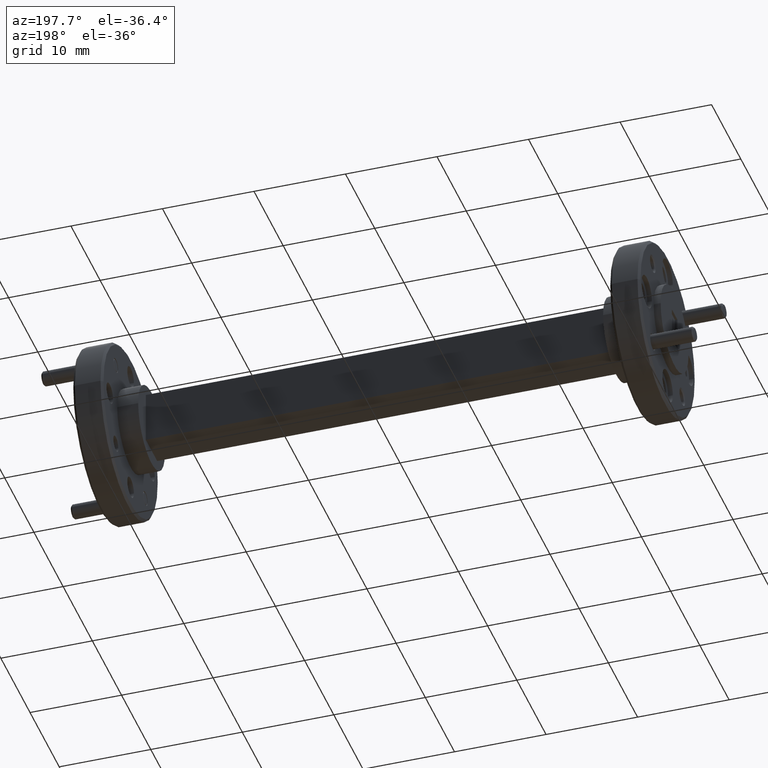
[diagram: clean part render]
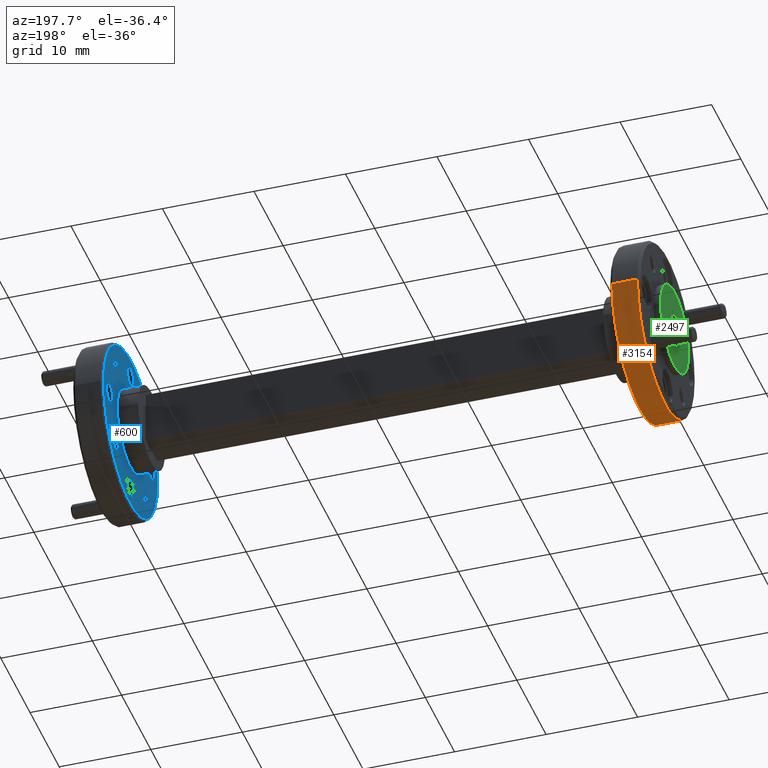
[diagram: same view with three faces highlighted in distinct colors, each labeled with its STEP entity id]
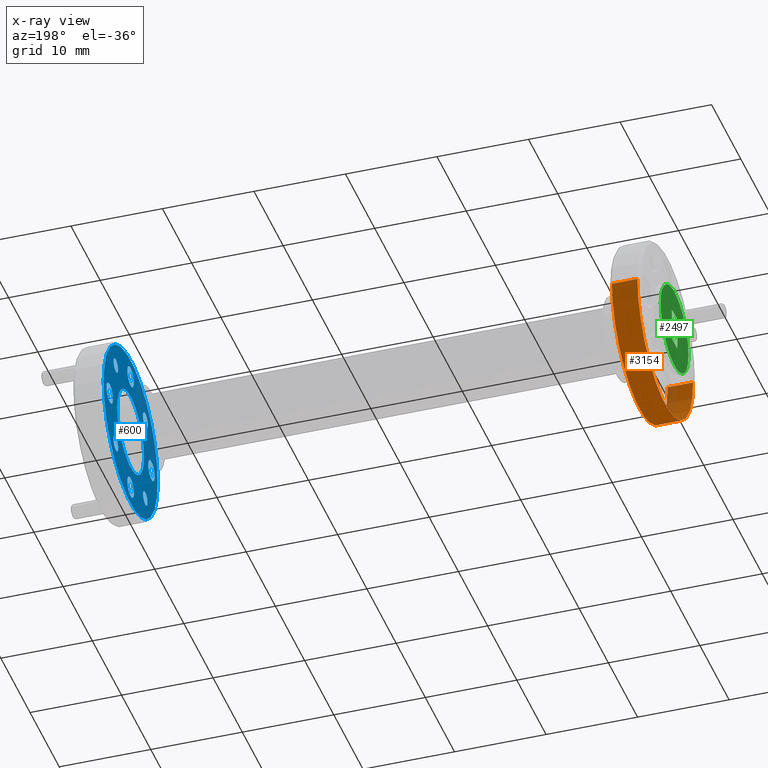
[diagram: x-ray of the same camera — body ghosted, the three highlighted faces saturated]
A machine part, auxiliary view with three faces highlighted in distinct colors.
The next image is the same camera in x-ray (body ghosted, the three faces saturated) — at least one of them is partly hidden behind the body in this view.
Their STEP definitions:

[orange] entity #3154 — the highlighted cylindrical surface (partial cylindrical patch) has radius 9.525 mm, axis along (1, 0, -0).
#6 = VERTEX_POINT ( 'NONE', #2014 ) ;
#23 = DIRECTION ( 'NONE',  ( 1.000000000000000000, 1.224646799147353947E-16, -0.000000000000000000 ) ) ;
#253 = DIRECTION ( 'NONE',  ( -1.000000000000000000, -1.224646799147350742E-16, 0.000000000000000000 ) ) ;
#289 = VECTOR ( 'NONE', #1967, 39.37007874015748143 ) ;
#343 = CARTESIAN_POINT ( 'NONE',  ( 0.1500000000000007994, 0.3749999999999996669, 0.000000000000000000 ) ) ;
#440 = EDGE_CURVE ( 'NONE', #2065, #6, #1592, .T. ) ;
#535 = ORIENTED_EDGE ( 'NONE', *, *, #2233, .F. ) ;
#581 = CARTESIAN_POINT ( 'NONE',  ( -1.862448192378166163E-13, -0.3749999999999996669, 4.592425496802570521E-17 ) ) ;
#709 = FACE_OUTER_BOUND ( 'NONE', #3726, .T. ) ;
#782 = ORIENTED_EDGE ( 'NONE', *, *, #1442, .T. ) ;
#826 = AXIS2_PLACEMENT_3D ( 'NONE', #2449, #4064, #3383 ) ;
#942 = EDGE_CURVE ( 'NONE', #6, #1489, #1130, .T. ) ;
#997 = CIRCLE ( 'NONE', #1413, 0.3749999999999996669 ) ;
#1040 = CARTESIAN_POINT ( 'NONE',  ( 0.1500000000000008826, -0.3749999999999996669, 4.592425496802570521E-17 ) ) ;
#1130 = LINE ( 'NONE', #2483, #2696 ) ;
#1413 = AXIS2_PLACEMENT_3D ( 'NONE', #3270, #253, #4261 ) ;
#1442 = EDGE_CURVE ( 'NONE', #1489, #3179, #997, .T. ) ;
#1489 = VERTEX_POINT ( 'NONE', #343 ) ;
#1592 = CIRCLE ( 'NONE', #3144, 0.3749999999999996669 ) ;
#1783 = CYLINDRICAL_SURFACE ( 'NONE', #826, 0.3749999999999996669 ) ;
#1888 = ORIENTED_EDGE ( 'NONE', *, *, #440, .T. ) ;
#1967 = DIRECTION ( 'NONE',  ( 1.000000000000000000, 1.224646799147353454E-16, -0.000000000000000000 ) ) ;
#2014 = CARTESIAN_POINT ( 'NONE',  ( 0.03999999999999988981, 0.3749999999999996669, 0.000000000000000000 ) ) ;
#2065 = VERTEX_POINT ( 'NONE', #3846 ) ;
#2233 = EDGE_CURVE ( 'NONE', #2065, #3179, #2976, .T. ) ;
#2449 = CARTESIAN_POINT ( 'NONE',  ( -1.862907434927846262E-13, -5.755786505608412837E-19, 0.000000000000000000 ) ) ;
#2483 = CARTESIAN_POINT ( 'NONE',  ( -1.863366677477526361E-13, 0.3749999999999996669, 0.000000000000000000 ) ) ;
#2696 = VECTOR ( 'NONE', #4116, 39.37007874015748143 ) ;
#2715 = CARTESIAN_POINT ( 'NONE',  ( 0.03999999999999993144, 4.323008546051379020E-18, 0.000000000000000000 ) ) ;
#2976 = LINE ( 'NONE', #581, #289 ) ;
#3103 = ORIENTED_EDGE ( 'NONE', *, *, #942, .T. ) ;
#3144 = AXIS2_PLACEMENT_3D ( 'NONE', #2715, #23, #3649 ) ;
#3154 = ADVANCED_FACE ( 'NONE', ( #709 ), #1783, .T. ) ;
#3179 = VERTEX_POINT ( 'NONE', #1040 ) ;
#3270 = CARTESIAN_POINT ( 'NONE',  ( 0.1500000000000008549, 1.779412333667238007E-17, 0.000000000000000000 ) ) ;
#3383 = DIRECTION ( 'NONE',  ( -1.224646799147020653E-16, 1.000000000000000000, 0.000000000000000000 ) ) ;
#3649 = DIRECTION ( 'NONE',  ( 1.138269997360110660E-16, -1.000000000000000000, 0.000000000000000000 ) ) ;
#3726 = EDGE_LOOP ( 'NONE', ( #535, #1888, #3103, #782 ) ) ;
#3846 = CARTESIAN_POINT ( 'NONE',  ( 0.03999999999999997308, -0.3749999999999996669, 4.592425496802570521E-17 ) ) ;
#4064 = DIRECTION ( 'NONE',  ( 1.000000000000000000, 1.224646799147353454E-16, -0.000000000000000000 ) ) ;
#4116 = DIRECTION ( 'NONE',  ( 1.000000000000000000, 1.224646799147353454E-16, -0.000000000000000000 ) ) ;
#4261 = DIRECTION ( 'NONE',  ( -1.365923996832132842E-16, 1.000000000000000000, 0.000000000000000000 ) ) ;

[blue] entity #600 — the highlighted planar face has unit normal (-1, -0, 0).
#1 = DIRECTION ( 'NONE',  ( 1.000000000000000000, 1.224646799147353454E-16, -0.000000000000000000 ) ) ;
#36 = DIRECTION ( 'NONE',  ( 1.000000000000000000, 1.224646799147353454E-16, -0.000000000000000000 ) ) ;
#41 = DIRECTION ( 'NONE',  ( 1.000000000000000000, 1.224646799147353454E-16, -0.000000000000000000 ) ) ;
#44 = DIRECTION ( 'NONE',  ( 0.000000000000000000, -1.000000000000000000, 0.000000000000000000 ) ) ;
#47 = DIRECTION ( 'NONE',  ( 0.000000000000000000, -1.000000000000000000, 0.000000000000000000 ) ) ;
#109 = CARTESIAN_POINT ( 'NONE',  ( 2.340000000000000302, -0.1988737822087162099, 0.1988737822087165430 ) ) ;
#113 = CARTESIAN_POINT ( 'NONE',  ( 2.340000000000000302, 0.1988737822087169871, -0.1988737822087165430 ) ) ;
#122 = VERTEX_POINT ( 'NONE', #4111 ) ;
#129 = EDGE_CURVE ( 'NONE', #1968, #122, #234, .T. ) ;
#133 = ORIENTED_EDGE ( 'NONE', *, *, #916, .T. ) ;
#155 = DIRECTION ( 'NONE',  ( -1.000000000000000000, -1.224646799147353454E-16, 0.000000000000000000 ) ) ;
#163 = AXIS2_PLACEMENT_3D ( 'NONE', #2432, #36, #2404 ) ;
#193 = EDGE_CURVE ( 'NONE', #2400, #3696, #2699, .T. ) ;
#197 = ORIENTED_EDGE ( 'NONE', *, *, #3817, .T. ) ;
#199 = DIRECTION ( 'NONE',  ( 0.000000000000000000, -1.000000000000000000, 0.000000000000000000 ) ) ;
#209 = ORIENTED_EDGE ( 'NONE', *, *, #945, .T. ) ;
#234 = CIRCLE ( 'NONE', #163, 0.03074999999999997180 ) ;
#267 = AXIS2_PLACEMENT_3D ( 'NONE', #2498, #3836, #2161 ) ;
#305 = AXIS2_PLACEMENT_3D ( 'NONE', #1633, #1, #2266 ) ;
#372 = EDGE_LOOP ( 'NONE', ( #3017, #4316 ) ) ;
#410 = FACE_BOUND ( 'NONE', #835, .T. ) ;
#426 = DIRECTION ( 'NONE',  ( 0.000000000000000000, -1.000000000000000000, 0.000000000000000000 ) ) ;
#447 = VERTEX_POINT ( 'NONE', #2379 ) ;
#531 = AXIS2_PLACEMENT_3D ( 'NONE', #3507, #4183, #199 ) ;
#566 = DIRECTION ( 'NONE',  ( 1.000000000000000000, 1.224646799147353454E-16, -0.000000000000000000 ) ) ;
#574 = EDGE_CURVE ( 'NONE', #4018, #3081, #1096, .T. ) ;
#600 = ADVANCED_FACE ( 'NONE', ( #1457, #1823, #3768, #4077, #3511, #759, #410, #3488, #2801, #3180 ), #4123, .T. ) ;
#606 = AXIS2_PLACEMENT_3D ( 'NONE', #887, #2222, #44 ) ;
#626 = VERTEX_POINT ( 'NONE', #2174 ) ;
#678 = DIRECTION ( 'NONE',  ( 1.000000000000000000, 1.224646799147353454E-16, -0.000000000000000000 ) ) ;
#692 = EDGE_CURVE ( 'NONE', #122, #1968, #3703, .T. ) ;
#703 = EDGE_LOOP ( 'NONE', ( #2237, #3257 ) ) ;
#759 = FACE_BOUND ( 'NONE', #2341, .T. ) ;
#798 = CIRCLE ( 'NONE', #3262, 0.03074999999999997180 ) ;
#809 = EDGE_LOOP ( 'NONE', ( #209, #919 ) ) ;
#835 = EDGE_LOOP ( 'NONE', ( #2129, #4227 ) ) ;
#861 = AXIS2_PLACEMENT_3D ( 'NONE', #1999, #3977, #1312 ) ;
#877 = CIRCLE ( 'NONE', #4156, 0.04449999999999999789 ) ;
#885 = CARTESIAN_POINT ( 'NONE',  ( 2.340000000000000302, 0.1988737822087168483, 0.1988737822087165430 ) ) ;
#887 = CARTESIAN_POINT ( 'NONE',  ( 2.340000000000000302, 0.1988737822087169871, -0.1988737822087165430 ) ) ;
#909 = DIRECTION ( 'NONE',  ( 0.000000000000000000, -1.000000000000000000, 0.000000000000000000 ) ) ;
#910 = DIRECTION ( 'NONE',  ( 0.000000000000000000, -1.000000000000000000, 0.000000000000000000 ) ) ;
#911 = CARTESIAN_POINT ( 'NONE',  ( 2.340000000000000302, 0.3257500000000002616, 0.000000000000000000 ) ) ;
#916 = EDGE_CURVE ( 'NONE', #447, #1659, #2550, .T. ) ;
#919 = ORIENTED_EDGE ( 'NONE', *, *, #1673, .T. ) ;
#935 = CARTESIAN_POINT ( 'NONE',  ( 2.340000000000000302, 2.859917723499426963E-16, 0.000000000000000000 ) ) ;
#945 = EDGE_CURVE ( 'NONE', #2808, #626, #798, .T. ) ;
#1005 = AXIS2_PLACEMENT_3D ( 'NONE', #1569, #2245, #1125 ) ;
#1041 = CIRCLE ( 'NONE', #1680, 0.3649999999999994360 ) ;
#1094 = DIRECTION ( 'NONE',  ( 1.000000000000000000, 1.224646799147353454E-16, -0.000000000000000000 ) ) ;
#1096 = CIRCLE ( 'NONE', #1800, 0.03350000000000002975 ) ;
#1116 = CARTESIAN_POINT ( 'NONE',  ( 2.340000000000000302, 0.1799999999999997435, 0.000000000000000000 ) ) ;
#1125 = DIRECTION ( 'NONE',  ( 0.000000000000000000, -1.000000000000000000, 0.000000000000000000 ) ) ;
#1128 = CIRCLE ( 'NONE', #4004, 0.1799999999999994937 ) ;
#1159 = CARTESIAN_POINT ( 'NONE',  ( 2.340000000000000302, -0.1681237822087161549, -0.1988737822087165430 ) ) ;
#1170 = EDGE_CURVE ( 'NONE', #1238, #1898, #1551, .T. ) ;
#1193 = CIRCLE ( 'NONE', #861, 0.04450000000000008116 ) ;
#1209 = CARTESIAN_POINT ( 'NONE',  ( 2.340000000000000302, 2.865673510004807555E-16, -0.2812500000000000000 ) ) ;
#1231 = AXIS2_PLACEMENT_3D ( 'NONE', #1116, #155, #1805 ) ;
#1238 = VERTEX_POINT ( 'NONE', #3035 ) ;
#1269 = CIRCLE ( 'NONE', #1975, 0.03349999999999999506 ) ;
#1298 = VERTEX_POINT ( 'NONE', #3079 ) ;
#1312 = DIRECTION ( 'NONE',  ( 0.000000000000000000, -1.000000000000000000, 0.000000000000000000 ) ) ;
#1387 = CARTESIAN_POINT ( 'NONE',  ( 2.340000000000000302, -0.04449999999999978972, 0.2812500000000000000 ) ) ;
#1455 = CARTESIAN_POINT ( 'NONE',  ( 2.340000000000000302, -0.1988737822087161544, -0.1988737822087165430 ) ) ;
#1457 = FACE_OUTER_BOUND ( 'NONE', #1848, .T. ) ;
#1472 = EDGE_CURVE ( 'NONE', #4202, #3585, #1128, .T. ) ;
#1499 = EDGE_CURVE ( 'NONE', #3443, #3580, #1193, .T. ) ;
#1503 = EDGE_CURVE ( 'NONE', #1854, #3038, #3673, .T. ) ;
#1505 = CIRCLE ( 'NONE', #606, 0.03350000000000002975 ) ;
#1506 = DIRECTION ( 'NONE',  ( -1.000000000000000000, -1.224646799147353454E-16, 0.000000000000000000 ) ) ;
#1539 = CARTESIAN_POINT ( 'NONE',  ( 2.340000000000000302, 2.859917723499426963E-16, 0.000000000000000000 ) ) ;
#1551 = CIRCLE ( 'NONE', #4130, 0.3649999999999994360 ) ;
#1569 = CARTESIAN_POINT ( 'NONE',  ( 2.340000000000000302, -0.1988737822087162099, 0.1988737822087165430 ) ) ;
#1599 = AXIS2_PLACEMENT_3D ( 'NONE', #885, #3293, #909 ) ;
#1632 = AXIS2_PLACEMENT_3D ( 'NONE', #1455, #2712, #47 ) ;
#1633 = CARTESIAN_POINT ( 'NONE',  ( 2.340000000000000302, 0.2812500000000002776, 0.000000000000000000 ) ) ;
#1659 = VERTEX_POINT ( 'NONE', #3396 ) ;
#1667 = EDGE_CURVE ( 'NONE', #3696, #2400, #1269, .T. ) ;
#1673 = EDGE_CURVE ( 'NONE', #626, #2808, #3877, .T. ) ;
#1680 = AXIS2_PLACEMENT_3D ( 'NONE', #1539, #3133, #2549 ) ;
#1705 = EDGE_LOOP ( 'NONE', ( #2154, #2908 ) ) ;
#1715 = CARTESIAN_POINT ( 'NONE',  ( 2.340000000000000302, -0.1988737822087161544, -0.1988737822087165430 ) ) ;
#1724 = CARTESIAN_POINT ( 'NONE',  ( 2.340000000000000302, 2.859917723499426963E-16, 0.000000000000000000 ) ) ;
#1727 = EDGE_LOOP ( 'NONE', ( #4000, #1859 ) ) ;
#1741 = DIRECTION ( 'NONE',  ( 1.000000000000000000, 1.224646799147353454E-16, -0.000000000000000000 ) ) ;
#1752 = ORIENTED_EDGE ( 'NONE', *, *, #1499, .T. ) ;
#1755 = DIRECTION ( 'NONE',  ( 0.000000000000000000, -1.000000000000000000, 0.000000000000000000 ) ) ;
#1761 = DIRECTION ( 'NONE',  ( 1.000000000000000000, 1.224646799147353454E-16, -0.000000000000000000 ) ) ;
#1768 = DIRECTION ( 'NONE',  ( 1.000000000000000000, 1.224646799147353454E-16, -0.000000000000000000 ) ) ;
#1800 = AXIS2_PLACEMENT_3D ( 'NONE', #113, #3828, #426 ) ;
#1805 = DIRECTION ( 'NONE',  ( 1.224646799147353454E-16, -1.000000000000000000, 0.000000000000000000 ) ) ;
#1823 = FACE_BOUND ( 'NONE', #1727, .T. ) ;
#1848 = EDGE_LOOP ( 'NONE', ( #2634, #4127 ) ) ;
#1854 = VERTEX_POINT ( 'NONE', #911 ) ;
#1856 = AXIS2_PLACEMENT_3D ( 'NONE', #1209, #2617, #2925 ) ;
#1859 = ORIENTED_EDGE ( 'NONE', *, *, #193, .T. ) ;
#1898 = VERTEX_POINT ( 'NONE', #3991 ) ;
#1968 = VERTEX_POINT ( 'NONE', #4057 ) ;
#1975 = AXIS2_PLACEMENT_3D ( 'NONE', #109, #1741, #2773 ) ;
#1999 = CARTESIAN_POINT ( 'NONE',  ( 2.340000000000000302, 2.865673510004807555E-16, 0.2812500000000000000 ) ) ;
#2086 = EDGE_CURVE ( 'NONE', #3580, #3443, #4228, .T. ) ;
#2109 = CARTESIAN_POINT ( 'NONE',  ( 2.340000000000000302, 0.04450000000000037259, 0.2812500000000000000 ) ) ;
#2119 = EDGE_CURVE ( 'NONE', #1898, #1238, #1041, .T. ) ;
#2129 = ORIENTED_EDGE ( 'NONE', *, *, #1503, .T. ) ;
#2154 = ORIENTED_EDGE ( 'NONE', *, *, #692, .T. ) ;
#2161 = DIRECTION ( 'NONE',  ( 0.000000000000000000, -1.000000000000000000, 0.000000000000000000 ) ) ;
#2162 = EDGE_LOOP ( 'NONE', ( #2701, #1752 ) ) ;
#2174 = CARTESIAN_POINT ( 'NONE',  ( 2.340000000000000302, -0.2296237822087161262, -0.1988737822087165430 ) ) ;
#2222 = DIRECTION ( 'NONE',  ( 1.000000000000000000, 1.224646799147353454E-16, -0.000000000000000000 ) ) ;
#2237 = ORIENTED_EDGE ( 'NONE', *, *, #2437, .T. ) ;
#2245 = DIRECTION ( 'NONE',  ( 1.000000000000000000, 1.224646799147353454E-16, -0.000000000000000000 ) ) ;
#2266 = DIRECTION ( 'NONE',  ( 0.000000000000000000, -1.000000000000000000, 0.000000000000000000 ) ) ;
#2305 = AXIS2_PLACEMENT_3D ( 'NONE', #3520, #1768, #3127 ) ;
#2341 = EDGE_LOOP ( 'NONE', ( #133, #3652 ) ) ;
#2379 = CARTESIAN_POINT ( 'NONE',  ( 2.340000000000000302, 0.04450000000000037259, -0.2812500000000000000 ) ) ;
#2400 = VERTEX_POINT ( 'NONE', #2679 ) ;
#2404 = DIRECTION ( 'NONE',  ( 0.000000000000000000, -1.000000000000000000, 0.000000000000000000 ) ) ;
#2432 = CARTESIAN_POINT ( 'NONE',  ( 2.340000000000000302, 0.1988737822087168483, 0.1988737822087165430 ) ) ;
#2437 = EDGE_CURVE ( 'NONE', #2614, #1298, #3982, .T. ) ;
#2498 = CARTESIAN_POINT ( 'NONE',  ( 2.340000000000000302, -0.2812499999999997224, 0.000000000000000000 ) ) ;
#2549 = DIRECTION ( 'NONE',  ( 0.000000000000000000, -1.000000000000000000, 0.000000000000000000 ) ) ;
#2550 = CIRCLE ( 'NONE', #4219, 0.04450000000000008116 ) ;
#2585 = CARTESIAN_POINT ( 'NONE',  ( 2.340000000000000302, 0.2812500000000002776, 0.000000000000000000 ) ) ;
#2614 = VERTEX_POINT ( 'NONE', #3567 ) ;
#2617 = DIRECTION ( 'NONE',  ( 1.000000000000000000, 1.224646799147353454E-16, -0.000000000000000000 ) ) ;
#2634 = ORIENTED_EDGE ( 'NONE', *, *, #1170, .T. ) ;
#2644 = CIRCLE ( 'NONE', #2849, 0.1799999999999994937 ) ;
#2679 = CARTESIAN_POINT ( 'NONE',  ( 2.340000000000000302, -0.2323737822087162119, 0.1988737822087165430 ) ) ;
#2699 = CIRCLE ( 'NONE', #1005, 0.03349999999999999506 ) ;
#2701 = ORIENTED_EDGE ( 'NONE', *, *, #2086, .T. ) ;
#2712 = DIRECTION ( 'NONE',  ( 1.000000000000000000, 1.224646799147353454E-16, -0.000000000000000000 ) ) ;
#2773 = DIRECTION ( 'NONE',  ( 0.000000000000000000, -1.000000000000000000, 0.000000000000000000 ) ) ;
#2783 = CARTESIAN_POINT ( 'NONE',  ( 2.340000000000000302, 0.1653737822087169573, -0.1988737822087165430 ) ) ;
#2801 = FACE_BOUND ( 'NONE', #1705, .T. ) ;
#2808 = VERTEX_POINT ( 'NONE', #1159 ) ;
#2849 = AXIS2_PLACEMENT_3D ( 'NONE', #1724, #1761, #3115 ) ;
#2860 = ORIENTED_EDGE ( 'NONE', *, *, #574, .T. ) ;
#2883 = EDGE_LOOP ( 'NONE', ( #2860, #197 ) ) ;
#2908 = ORIENTED_EDGE ( 'NONE', *, *, #129, .T. ) ;
#2925 = DIRECTION ( 'NONE',  ( 0.000000000000000000, -1.000000000000000000, 0.000000000000000000 ) ) ;
#2940 = CARTESIAN_POINT ( 'NONE',  ( 2.340000000000000302, -0.1653737822087162079, 0.1988737822087165430 ) ) ;
#3017 = ORIENTED_EDGE ( 'NONE', *, *, #3524, .T. ) ;
#3035 = CARTESIAN_POINT ( 'NONE',  ( 2.340000000000000302, 0.3649999999999997136, 0.000000000000000000 ) ) ;
#3038 = VERTEX_POINT ( 'NONE', #3322 ) ;
#3079 = CARTESIAN_POINT ( 'NONE',  ( 2.340000000000000302, -0.3257499999999997065, 5.449678256205722801E-18 ) ) ;
#3081 = VERTEX_POINT ( 'NONE', #2783 ) ;
#3090 = CARTESIAN_POINT ( 'NONE',  ( 2.340000000000000302, 2.865673510004807555E-16, -0.2812500000000000000 ) ) ;
#3115 = DIRECTION ( 'NONE',  ( 0.000000000000000000, 1.000000000000000000, 0.000000000000000000 ) ) ;
#3127 = DIRECTION ( 'NONE',  ( 0.000000000000000000, -1.000000000000000000, 0.000000000000000000 ) ) ;
#3133 = DIRECTION ( 'NONE',  ( -1.000000000000000000, -1.224646799147353454E-16, 0.000000000000000000 ) ) ;
#3180 = FACE_BOUND ( 'NONE', #809, .T. ) ;
#3257 = ORIENTED_EDGE ( 'NONE', *, *, #3319, .T. ) ;
#3262 = AXIS2_PLACEMENT_3D ( 'NONE', #1715, #1094, #1755 ) ;
#3293 = DIRECTION ( 'NONE',  ( 1.000000000000000000, 1.224646799147353454E-16, -0.000000000000000000 ) ) ;
#3319 = EDGE_CURVE ( 'NONE', #1298, #2614, #3429, .T. ) ;
#3322 = CARTESIAN_POINT ( 'NONE',  ( 2.340000000000000302, 0.2367500000000002935, 5.449678256205722801E-18 ) ) ;
#3396 = CARTESIAN_POINT ( 'NONE',  ( 2.340000000000000302, -0.04449999999999978972, -0.2812500000000000000 ) ) ;
#3429 = CIRCLE ( 'NONE', #267, 0.04449999999999999789 ) ;
#3443 = VERTEX_POINT ( 'NONE', #1387 ) ;
#3488 = FACE_BOUND ( 'NONE', #372, .T. ) ;
#3489 = CARTESIAN_POINT ( 'NONE',  ( 2.340000000000000302, 0.1799999999999997435, 0.000000000000000000 ) ) ;
#3507 = CARTESIAN_POINT ( 'NONE',  ( 2.340000000000000302, 2.865673510004807555E-16, 0.2812500000000000000 ) ) ;
#3511 = FACE_BOUND ( 'NONE', #703, .T. ) ;
#3520 = CARTESIAN_POINT ( 'NONE',  ( 2.340000000000000302, -0.2812499999999997224, 0.000000000000000000 ) ) ;
#3524 = EDGE_CURVE ( 'NONE', #3585, #4202, #2644, .T. ) ;
#3551 = CIRCLE ( 'NONE', #1856, 0.04450000000000008116 ) ;
#3565 = CARTESIAN_POINT ( 'NONE',  ( 2.340000000000000302, -0.1799999999999992162, 2.204364238465230584E-17 ) ) ;
#3567 = CARTESIAN_POINT ( 'NONE',  ( 2.340000000000000302, -0.2367499999999997384, 0.000000000000000000 ) ) ;
#3580 = VERTEX_POINT ( 'NONE', #2109 ) ;
#3585 = VERTEX_POINT ( 'NONE', #3489 ) ;
#3652 = ORIENTED_EDGE ( 'NONE', *, *, #4330, .T. ) ;
#3673 = CIRCLE ( 'NONE', #305, 0.04449999999999999789 ) ;
#3696 = VERTEX_POINT ( 'NONE', #2940 ) ;
#3703 = CIRCLE ( 'NONE', #1599, 0.03074999999999997180 ) ;
#3711 = EDGE_CURVE ( 'NONE', #3038, #1854, #877, .T. ) ;
#3768 = FACE_BOUND ( 'NONE', #2883, .T. ) ;
#3799 = DIRECTION ( 'NONE',  ( 0.000000000000000000, -1.000000000000000000, 0.000000000000000000 ) ) ;
#3817 = EDGE_CURVE ( 'NONE', #3081, #4018, #1505, .T. ) ;
#3828 = DIRECTION ( 'NONE',  ( 1.000000000000000000, 1.224646799147353454E-16, -0.000000000000000000 ) ) ;
#3836 = DIRECTION ( 'NONE',  ( 1.000000000000000000, 1.224646799147353454E-16, -0.000000000000000000 ) ) ;
#3877 = CIRCLE ( 'NONE', #1632, 0.03074999999999997180 ) ;
#3906 = CARTESIAN_POINT ( 'NONE',  ( 2.340000000000000302, 0.2323737822087170168, -0.1988737822087165430 ) ) ;
#3977 = DIRECTION ( 'NONE',  ( 1.000000000000000000, 1.224646799147353454E-16, -0.000000000000000000 ) ) ;
#3982 = CIRCLE ( 'NONE', #2305, 0.04449999999999999789 ) ;
#3991 = CARTESIAN_POINT ( 'NONE',  ( 2.340000000000000302, -0.3649999999999991585, 4.531193156845200531E-17 ) ) ;
#3994 = DIRECTION ( 'NONE',  ( 0.000000000000000000, 1.000000000000000000, 0.000000000000000000 ) ) ;
#4000 = ORIENTED_EDGE ( 'NONE', *, *, #1667, .T. ) ;
#4004 = AXIS2_PLACEMENT_3D ( 'NONE', #4281, #678, #3994 ) ;
#4018 = VERTEX_POINT ( 'NONE', #3906 ) ;
#4057 = CARTESIAN_POINT ( 'NONE',  ( 2.340000000000000302, 0.1681237822087168765, 0.1988737822087165430 ) ) ;
#4077 = FACE_BOUND ( 'NONE', #2162, .T. ) ;
#4111 = CARTESIAN_POINT ( 'NONE',  ( 2.340000000000000302, 0.2296237822087168201, 0.1988737822087165430 ) ) ;
#4123 = PLANE ( 'NONE',  #1231 ) ;
#4127 = ORIENTED_EDGE ( 'NONE', *, *, #2119, .T. ) ;
#4130 = AXIS2_PLACEMENT_3D ( 'NONE', #935, #1506, #4194 ) ;
#4156 = AXIS2_PLACEMENT_3D ( 'NONE', #2585, #566, #910 ) ;
#4183 = DIRECTION ( 'NONE',  ( 1.000000000000000000, 1.224646799147353454E-16, -0.000000000000000000 ) ) ;
#4194 = DIRECTION ( 'NONE',  ( 0.000000000000000000, -1.000000000000000000, 0.000000000000000000 ) ) ;
#4202 = VERTEX_POINT ( 'NONE', #3565 ) ;
#4219 = AXIS2_PLACEMENT_3D ( 'NONE', #3090, #41, #3799 ) ;
#4227 = ORIENTED_EDGE ( 'NONE', *, *, #3711, .T. ) ;
#4228 = CIRCLE ( 'NONE', #531, 0.04450000000000008116 ) ;
#4281 = CARTESIAN_POINT ( 'NONE',  ( 2.340000000000000302, 2.859917723499426963E-16, 0.000000000000000000 ) ) ;
#4316 = ORIENTED_EDGE ( 'NONE', *, *, #1472, .T. ) ;
#4330 = EDGE_CURVE ( 'NONE', #1659, #447, #3551, .T. ) ;

[green] entity #2497 — the highlighted planar face has unit normal (-1, -0, 0).
#146 = CARTESIAN_POINT ( 'NONE',  ( 1.148106374200642476E-17, 1.406024796245490310E-33, 0.000000000000000000 ) ) ;
#192 = EDGE_CURVE ( 'NONE', #839, #3336, #452, .T. ) ;
#239 = AXIS2_PLACEMENT_3D ( 'NONE', #812, #1230, #2141 ) ;
#294 = CARTESIAN_POINT ( 'NONE',  ( 9.296024062278548045E-30, 0.1874999999999997780, 0.000000000000000000 ) ) ;
#394 = CARTESIAN_POINT ( 'NONE',  ( 1.601225689885162930E-17, -0.03699999999999998429, -0.07399999999999999634 ) ) ;
#428 = EDGE_CURVE ( 'NONE', #1577, #3481, #2693, .T. ) ;
#452 = CIRCLE ( 'NONE', #239, 0.1874999999999997780 ) ;
#474 = DIRECTION ( 'NONE',  ( 0.000000000000000000, 1.000000000000000000, 0.000000000000000000 ) ) ;
#488 = FACE_BOUND ( 'NONE', #569, .T. ) ;
#522 = EDGE_LOOP ( 'NONE', ( #4032, #1208 ) ) ;
#569 = EDGE_LOOP ( 'NONE', ( #1056, #1250, #845, #743 ) ) ;
#698 = DIRECTION ( 'NONE',  ( -0.000000000000000000, 1.153652024351462561E-16, -1.000000000000000000 ) ) ;
#743 = ORIENTED_EDGE ( 'NONE', *, *, #2066, .T. ) ;
#796 = CARTESIAN_POINT ( 'NONE',  ( 0.000000000000000000, -0.03699999999999998429, -0.07399999999999999634 ) ) ;
#812 = CARTESIAN_POINT ( 'NONE',  ( 2.296212748402214637E-17, -5.755786505380245028E-19, 0.000000000000000000 ) ) ;
#839 = VERTEX_POINT ( 'NONE', #294 ) ;
#845 = ORIENTED_EDGE ( 'NONE', *, *, #1750, .T. ) ;
#857 = DIRECTION ( 'NONE',  ( -1.000000000000000000, -1.224646799147353454E-16, 0.000000000000000000 ) ) ;
#890 = EDGE_CURVE ( 'NONE', #3481, #3123, #1694, .T. ) ;
#1036 = DIRECTION ( 'NONE',  ( -0.000000000000000000, -1.000000000000000000, -0.000000000000000000 ) ) ;
#1056 = ORIENTED_EDGE ( 'NONE', *, *, #428, .T. ) ;
#1112 = DIRECTION ( 'NONE',  ( 0.000000000000000000, -5.768260121757312805E-17, 1.000000000000000000 ) ) ;
#1208 = ORIENTED_EDGE ( 'NONE', *, *, #2877, .F. ) ;
#1230 = DIRECTION ( 'NONE',  ( 1.000000000000000000, 1.224646799147353454E-16, -0.000000000000000000 ) ) ;
#1250 = ORIENTED_EDGE ( 'NONE', *, *, #890, .T. ) ;
#1314 = CARTESIAN_POINT ( 'NONE',  ( 0.000000000000000000, -0.03699999999999999817, 0.07399999999999999634 ) ) ;
#1577 = VERTEX_POINT ( 'NONE', #2984 ) ;
#1648 = VECTOR ( 'NONE', #1112, 39.37007874015748143 ) ;
#1694 = LINE ( 'NONE', #3697, #1769 ) ;
#1732 = VERTEX_POINT ( 'NONE', #2087 ) ;
#1750 = EDGE_CURVE ( 'NONE', #3123, #1732, #3802, .T. ) ;
#1769 = VECTOR ( 'NONE', #698, 39.37007874015748143 ) ;
#1816 = FACE_OUTER_BOUND ( 'NONE', #522, .T. ) ;
#1861 = CARTESIAN_POINT ( 'NONE',  ( 0.000000000000000000, 0.03700000000000000511, -0.07399999999999999634 ) ) ;
#1921 = CARTESIAN_POINT ( 'NONE',  ( 4.592425496803499281E-17, -0.1874999999999997780, 2.296212748401284644E-17 ) ) ;
#2066 = EDGE_CURVE ( 'NONE', #1732, #1577, #2529, .T. ) ;
#2087 = CARTESIAN_POINT ( 'NONE',  ( 0.000000000000000000, 0.03700000000000000511, -0.07399999999999999634 ) ) ;
#2141 = DIRECTION ( 'NONE',  ( -1.224646799147353454E-16, 1.000000000000000000, 0.000000000000000000 ) ) ;
#2216 = AXIS2_PLACEMENT_3D ( 'NONE', #3934, #2652, #2669 ) ;
#2398 = CARTESIAN_POINT ( 'NONE',  ( 0.000000000000000000, -0.03699999999999999817, 0.07399999999999999634 ) ) ;
#2497 = ADVANCED_FACE ( 'NONE', ( #488, #1816 ), #3173, .T. ) ;
#2529 = LINE ( 'NONE', #1861, #1648 ) ;
#2652 = DIRECTION ( 'NONE',  ( 1.000000000000000000, 1.224646799147353454E-16, -0.000000000000000000 ) ) ;
#2669 = DIRECTION ( 'NONE',  ( -1.224646799147353454E-16, 1.000000000000000000, 0.000000000000000000 ) ) ;
#2693 = LINE ( 'NONE', #1314, #3494 ) ;
#2877 = EDGE_CURVE ( 'NONE', #3336, #839, #3425, .T. ) ;
#2984 = CARTESIAN_POINT ( 'NONE',  ( 0.000000000000000000, 0.03699999999999999817, 0.07399999999999999634 ) ) ;
#3123 = VERTEX_POINT ( 'NONE', #394 ) ;
#3173 = PLANE ( 'NONE',  #3743 ) ;
#3336 = VERTEX_POINT ( 'NONE', #1921 ) ;
#3425 = CIRCLE ( 'NONE', #2216, 0.1874999999999997780 ) ;
#3481 = VERTEX_POINT ( 'NONE', #2398 ) ;
#3494 = VECTOR ( 'NONE', #1036, 39.37007874015748143 ) ;
#3541 = DIRECTION ( 'NONE',  ( 1.224646799147353454E-16, -1.000000000000000000, 0.000000000000000000 ) ) ;
#3697 = CARTESIAN_POINT ( 'NONE',  ( 0.000000000000000000, -0.03699999999999998429, -0.07399999999999999634 ) ) ;
#3743 = AXIS2_PLACEMENT_3D ( 'NONE', #146, #857, #3541 ) ;
#3802 = LINE ( 'NONE', #796, #4098 ) ;
#3934 = CARTESIAN_POINT ( 'NONE',  ( 2.296212748402214637E-17, -5.755786505380245028E-19, 0.000000000000000000 ) ) ;
#4032 = ORIENTED_EDGE ( 'NONE', *, *, #192, .F. ) ;
#4098 = VECTOR ( 'NONE', #474, 39.37007874015748143 ) ;